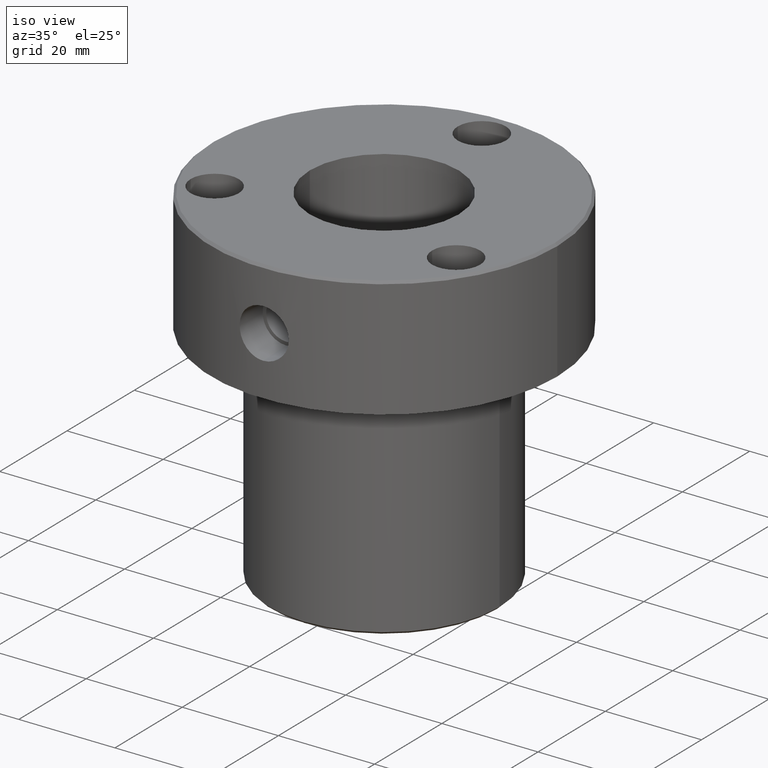
[diagram: clean part render]
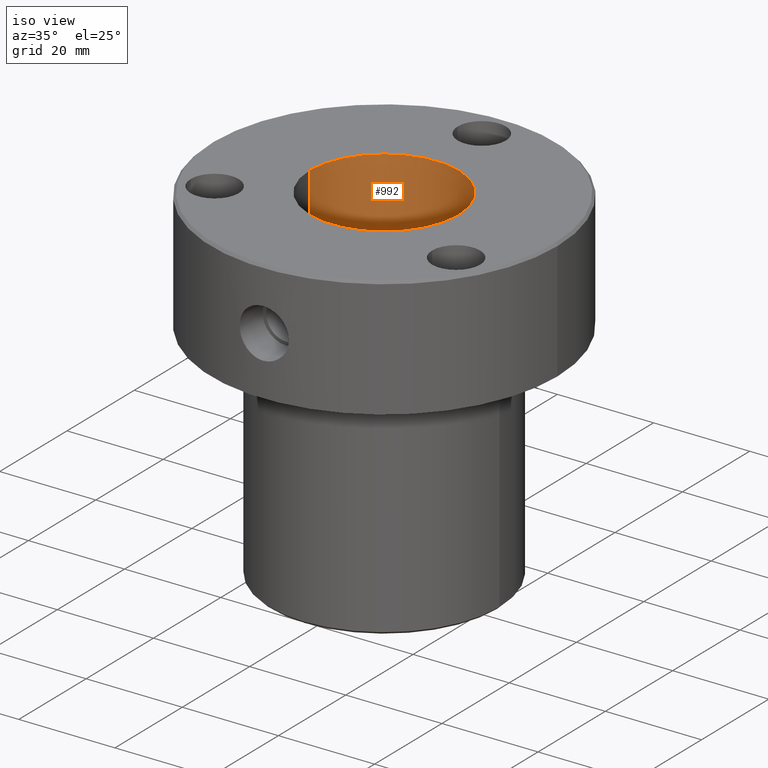
[diagram: same view with one face highlighted and labeled with its STEP entity id]
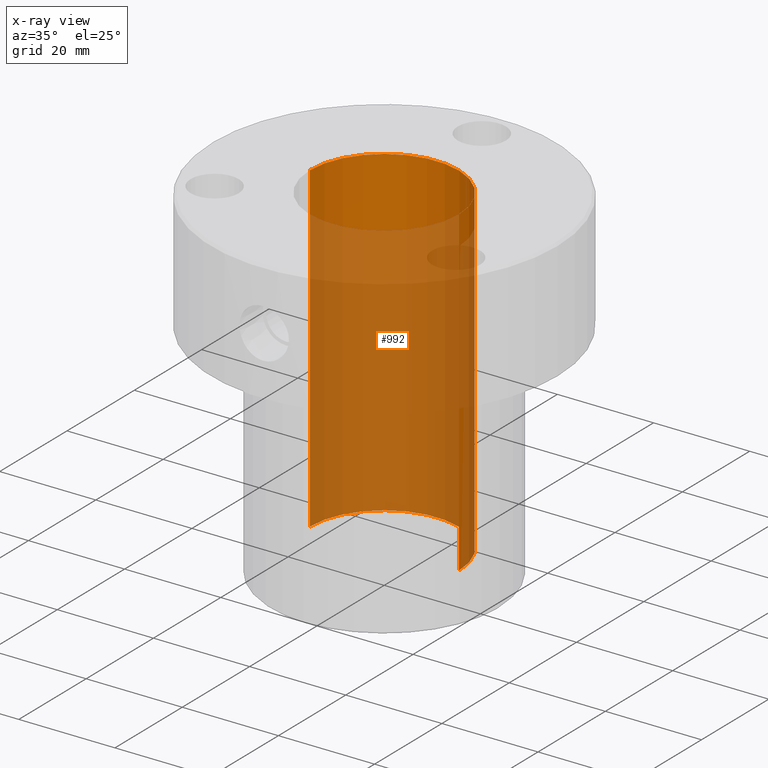
[diagram: x-ray of the same camera — body ghosted, the highlighted face saturated]
A machine part, iso view. The second image highlights one B-rep face of the part: STEP entity #992.
The next image is the same camera in x-ray: the body ghosted, the highlighted face saturated — about 81% of this face is hidden behind the body in this view.
In plain terms, the highlighted cylindrical surface (partial cylindrical patch) has radius 15.5 mm, axis along (-0, -0, -1).
Its self-contained STEP definition (entity closure, byte-faithful):
#15 = DIRECTION ( 'NONE',  ( -1.000000000000000000, 0.000000000000000000, 0.000000000000000000 ) ) ;
#22 = CARTESIAN_POINT ( 'NONE',  ( 15.50000000000000000, 1.898202538678397557E-15, 0.000000000000000000 ) ) ;
#43 = DIRECTION ( 'NONE',  ( -0.000000000000000000, -0.000000000000000000, -1.000000000000000000 ) ) ;
#69 = CIRCLE ( 'NONE', #629, 15.50000000000000000 ) ;
#76 = LINE ( 'NONE', #441, #243 ) ;
#93 = VECTOR ( 'NONE', #184, 1000.000000000000000 ) ;
#142 = EDGE_CURVE ( 'NONE', #1227, #183, #69, .T. ) ;
#183 = VERTEX_POINT ( 'NONE', #22 ) ;
#184 = DIRECTION ( 'NONE',  ( -0.000000000000000000, -0.000000000000000000, -1.000000000000000000 ) ) ;
#188 = DIRECTION ( 'NONE',  ( 0.000000000000000000, 0.000000000000000000, -1.000000000000000000 ) ) ;
#230 = DIRECTION ( 'NONE',  ( -1.000000000000000000, 0.000000000000000000, 0.000000000000000000 ) ) ;
#243 = VECTOR ( 'NONE', #341, 1000.000000000000000 ) ;
#303 = DIRECTION ( 'NONE',  ( 0.000000000000000000, 0.000000000000000000, -1.000000000000000000 ) ) ;
#338 = ORIENTED_EDGE ( 'NONE', *, *, #142, .F. ) ;
#341 = DIRECTION ( 'NONE',  ( -0.000000000000000000, -0.000000000000000000, -1.000000000000000000 ) ) ;
#374 = LINE ( 'NONE', #1067, #93 ) ;
#398 = AXIS2_PLACEMENT_3D ( 'NONE', #863, #188, #873 ) ;
#441 = CARTESIAN_POINT ( 'NONE',  ( -15.50000000000000000, 0.000000000000000000, 0.000000000000000000 ) ) ;
#444 = EDGE_CURVE ( 'NONE', #925, #1041, #1118, .T. ) ;
#481 = ORIENTED_EDGE ( 'NONE', *, *, #1167, .F. ) ;
#520 = CYLINDRICAL_SURFACE ( 'NONE', #633, 15.50000000000000000 ) ;
#523 = CARTESIAN_POINT ( 'NONE',  ( 0.000000000000000000, 0.000000000000000000, 0.000000000000000000 ) ) ;
#597 = CARTESIAN_POINT ( 'NONE',  ( 0.000000000000000000, 0.000000000000000000, 0.000000000000000000 ) ) ;
#629 = AXIS2_PLACEMENT_3D ( 'NONE', #597, #303, #15 ) ;
#631 = CARTESIAN_POINT ( 'NONE',  ( 15.50000000000000000, 1.898202538678397557E-15, -66.99999999999998579 ) ) ;
#633 = AXIS2_PLACEMENT_3D ( 'NONE', #523, #43, #230 ) ;
#744 = ORIENTED_EDGE ( 'NONE', *, *, #444, .T. ) ;
#779 = CARTESIAN_POINT ( 'NONE',  ( -15.50000000000000000, 0.000000000000000000, 0.000000000000000000 ) ) ;
#793 = EDGE_CURVE ( 'NONE', #1227, #925, #76, .T. ) ;
#863 = CARTESIAN_POINT ( 'NONE',  ( 0.000000000000000000, 0.000000000000000000, -66.99999999999998579 ) ) ;
#873 = DIRECTION ( 'NONE',  ( -1.000000000000000000, 0.000000000000000000, 0.000000000000000000 ) ) ;
#919 = EDGE_LOOP ( 'NONE', ( #481, #338, #953, #744 ) ) ;
#925 = VERTEX_POINT ( 'NONE', #975 ) ;
#953 = ORIENTED_EDGE ( 'NONE', *, *, #793, .T. ) ;
#975 = CARTESIAN_POINT ( 'NONE',  ( -15.50000000000000000, 0.000000000000000000, -66.99999999999998579 ) ) ;
#992 = ADVANCED_FACE ( 'NONE', ( #1085 ), #520, .F. ) ;
#1041 = VERTEX_POINT ( 'NONE', #631 ) ;
#1067 = CARTESIAN_POINT ( 'NONE',  ( 15.50000000000000000, 1.898202538678397557E-15, 0.000000000000000000 ) ) ;
#1085 = FACE_OUTER_BOUND ( 'NONE', #919, .T. ) ;
#1118 = CIRCLE ( 'NONE', #398, 15.50000000000000000 ) ;
#1167 = EDGE_CURVE ( 'NONE', #183, #1041, #374, .T. ) ;
#1227 = VERTEX_POINT ( 'NONE', #779 ) ;